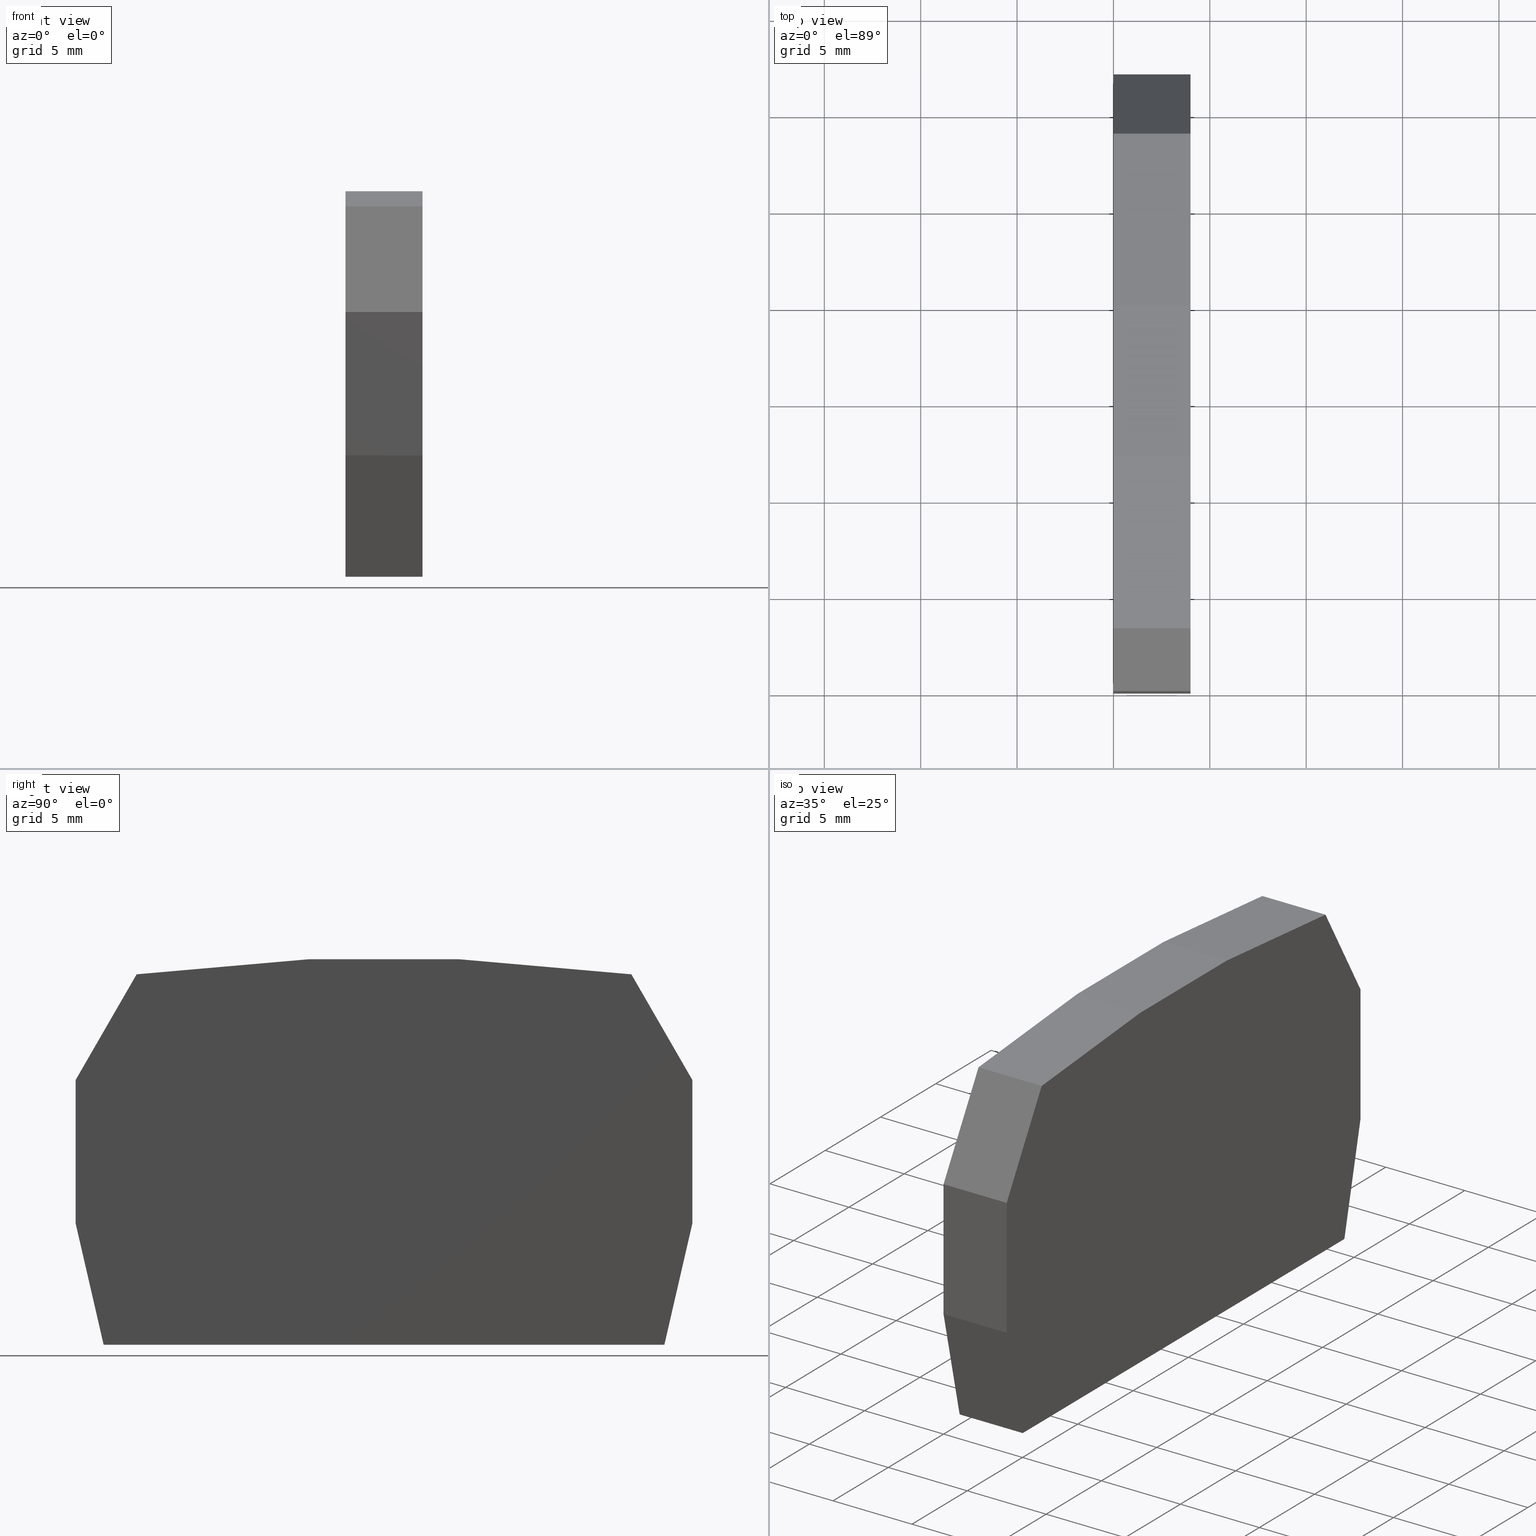
[diagram: canonical four-view strip — front | top / right | iso, engineering-drawing reading convention]
A machine part, canonical four-view strip (front | top / right | iso — engineering-drawing reading convention). The complete STEP part file that produces these views, byte-faithful:
ISO-10303-21;
HEADER;
FILE_DESCRIPTION(('Creo Elements/Direct Modeling STEP Export'),'2;1');
FILE_NAME(
'D:/temp/JobSpoolerServerData/JobServer Files/43c01a88-1d3e-4714-80b9-9d
5217ffe0ed/work/output/model.stp','2017-12-29T11:41:55',(''),(''),
'Creo Elements/Direct Modeling STEP processor for AP214 (Solid Model)',
'Creo Elements/Direct Modeling 18.1I  14-Aug-2016 (C) Parametric Technol
ogy GmbH','');
FILE_SCHEMA(('AUTOMOTIVE_DESIGN { 1 0 10303 214 1 1 1 1 }'));
ENDSEC;
DATA;
#10=CARTESIAN_POINT('',(20.2091964718262,86.2957323155951,
4.00000000000001));
#20=DIRECTION('',(0.,0.,1.));
#30=DIRECTION('',(1.,0.,0.));
#40=AXIS2_PLACEMENT_3D('',#10,#20,#30);
#50=PLANE('',#40);
#60=CARTESIAN_POINT('',(41.4852422445195,86.2957323155951,
4.00000000000001));
#70=DIRECTION('',(0.224951054345037,0.974370064784965,0.));
#80=VECTOR('',#70,1.);
#90=LINE('',#60,#80);
#100=CARTESIAN_POINT('',(37.0173254335857,66.9430584408326,
4.00000000000001));
#110=VERTEX_POINT('',#100);
#120=CARTESIAN_POINT('',(38.471795037686,73.2430584408381,
4.00000000000001));
#130=VERTEX_POINT('',#120);
#140=EDGE_CURVE('',#110,#130,#90,.T.);
#150=ORIENTED_EDGE('',*,*,#140,.F.);
#160=CARTESIAN_POINT('',(38.4717950376948,86.2957323155951,
4.00000000000001));
#170=DIRECTION('',(6.80122624885371E-13,1.,0.));
#180=VECTOR('',#170,1.);
#190=LINE('',#160,#180);
#200=CARTESIAN_POINT('',(38.471795037691,80.6770330370464,
4.00000000000001));
#210=VERTEX_POINT('',#200);
#220=EDGE_CURVE('',#130,#210,#190,.T.);
#230=ORIENTED_EDGE('',*,*,#220,.F.);
#240=CARTESIAN_POINT('',(35.2278374967297,86.2957323155951,
4.00000000000001));
#250=DIRECTION('',(-0.4999999999995,0.866025403784727,0.));
#260=VECTOR('',#250,1.);
#270=LINE('',#240,#260);
#280=CARTESIAN_POINT('',(35.305351863756,86.1614734935887,
4.00000000000001));
#290=VERTEX_POINT('',#280);
#300=EDGE_CURVE('',#210,#290,#270,.T.);
#310=ORIENTED_EDGE('',*,*,#300,.F.);
#320=CARTESIAN_POINT('',(20.2091964718262,87.4822159532185,
4.00000000000001));
#330=DIRECTION('',(0.996194698091687,-0.0871557427483274,0.));
#340=VECTOR('',#330,1.);
#350=LINE('',#320,#340);
#360=CARTESIAN_POINT('',(26.3717950376929,86.9430584408399,
4.00000000000001));
#370=VERTEX_POINT('',#360);
#380=EDGE_CURVE('',#370,#290,#350,.T.);
#390=ORIENTED_EDGE('',*,*,#380,.T.);
#400=CARTESIAN_POINT('',(30.9622604321233,86.9430584408368,
4.00000000000001));
#410=DIRECTION('',(-1.,6.73405775586389E-13,0.));
#420=VECTOR('',#410,1.);
#430=LINE('',#400,#420);
#440=CARTESIAN_POINT('',(18.5717950376847,86.9430584408452,
4.00000000000001));
#450=VERTEX_POINT('',#440);
#460=EDGE_CURVE('',#370,#450,#430,.T.);
#470=ORIENTED_EDGE('',*,*,#460,.F.);
#480=CARTESIAN_POINT('',(20.2091964718262,87.0863125039725,
4.00000000000001));
#490=DIRECTION('',(-0.996194698091806,-0.0871557427469682,0.));
#500=VECTOR('',#490,1.);
#510=LINE('',#480,#500);
#520=CARTESIAN_POINT('',(9.63823821163448,86.1614734936074,
4.00000000000001));
#530=VERTEX_POINT('',#520);
#540=EDGE_CURVE('',#450,#530,#510,.T.);
#550=ORIENTED_EDGE('',*,*,#540,.F.);
#560=CARTESIAN_POINT('',(9.71575257865031,86.2957323155951,
4.00000000000001));
#570=DIRECTION('',(0.500000000000682,0.866025403784045,0.));
#580=VECTOR('',#570,1.);
#590=LINE('',#560,#580);
#600=CARTESIAN_POINT('',(6.47179503769135,80.6770330370682,
4.00000000000001));
#610=VERTEX_POINT('',#600);
#620=EDGE_CURVE('',#610,#530,#590,.T.);
#630=ORIENTED_EDGE('',*,*,#620,.T.);
#640=CARTESIAN_POINT('',(6.4717950376952,86.2957323155951,
4.00000000000001));
#650=DIRECTION('',(6.84341472378946E-13,1.,0.));
#660=VECTOR('',#650,1.);
#670=LINE('',#640,#660);
#680=CARTESIAN_POINT('',(6.47179503768626,73.2430584408599,
4.00000000000001));
#690=VERTEX_POINT('',#680);
#700=EDGE_CURVE('',#690,#610,#670,.T.);
#710=ORIENTED_EDGE('',*,*,#700,.T.);
#720=CARTESIAN_POINT('',(3.45834783087646,86.2957323155951,
4.00000000000001));
#730=DIRECTION('',(-0.224951054343708,0.974370064785272,0.));
#740=VECTOR('',#730,1.);
#750=LINE('',#720,#740);
#760=CARTESIAN_POINT('',(7.92626464177793,66.9430584408525,
4.00000000000001));
#770=VERTEX_POINT('',#760);
#780=EDGE_CURVE('',#770,#690,#750,.T.);
#790=ORIENTED_EDGE('',*,*,#780,.T.);
#800=CARTESIAN_POINT('',(20.2091964718262,66.9430584408441,
4.00000000000001));
#810=DIRECTION('',(-1.,6.82232048632159E-13,0.));
#820=VECTOR('',#810,1.);
#830=LINE('',#800,#820);
#840=EDGE_CURVE('',#110,#770,#830,.T.);
#850=ORIENTED_EDGE('',*,*,#840,.T.);
#860=EDGE_LOOP('',(#850,#790,#710,#630,#550,#470,#390,#310,#230,#150));
#870=FACE_OUTER_BOUND('',#860,.T.);
#880=ADVANCED_FACE('',(#870),#50,.F.);
#890=COLOUR_RGB('',0.560784339904785,0.588235318660736,0.600000023841858
);
#900=FILL_AREA_STYLE_COLOUR('',#890);
#910=FILL_AREA_STYLE('',(#900));
#920=SURFACE_STYLE_FILL_AREA(#910);
#930=SURFACE_SIDE_STYLE('',(#920));
#940=SURFACE_STYLE_USAGE(.BOTH.,#930);
#950=PRESENTATION_STYLE_ASSIGNMENT((#940));
#960=CARTESIAN_POINT('',(20.2091964718262,86.2957323155951,
8.00000000000001));
#970=DIRECTION('',(0.,0.,1.));
#980=DIRECTION('',(1.,0.,0.));
#990=AXIS2_PLACEMENT_3D('',#960,#970,#980);
#1000=PLANE('',#990);
#1010=CARTESIAN_POINT('',(20.2091964718262,66.9430584408441,
8.00000000000001));
#1020=DIRECTION('',(-1.,6.82232048632159E-13,0.));
#1030=VECTOR('',#1020,1.);
#1040=LINE('',#1010,#1030);
#1050=CARTESIAN_POINT('',(37.0173254335857,66.9430584408326,
8.00000000000001));
#1060=VERTEX_POINT('',#1050);
#1070=CARTESIAN_POINT('',(7.92626464177793,66.9430584408525,
8.00000000000001));
#1080=VERTEX_POINT('',#1070);
#1090=EDGE_CURVE('',#1060,#1080,#1040,.T.);
#1100=ORIENTED_EDGE('',*,*,#1090,.F.);
#1110=CARTESIAN_POINT('',(3.45834783087646,86.2957323155951,
8.00000000000001));
#1120=DIRECTION('',(-0.224951054343708,0.974370064785272,0.));
#1130=VECTOR('',#1120,1.);
#1140=LINE('',#1110,#1130);
#1150=CARTESIAN_POINT('',(6.47179503768626,73.2430584408599,
8.00000000000001));
#1160=VERTEX_POINT('',#1150);
#1170=EDGE_CURVE('',#1080,#1160,#1140,.T.);
#1180=ORIENTED_EDGE('',*,*,#1170,.F.);
#1190=CARTESIAN_POINT('',(6.4717950376952,86.2957323155951,
8.00000000000001));
#1200=DIRECTION('',(6.84341472378946E-13,1.,0.));
#1210=VECTOR('',#1200,1.);
#1220=LINE('',#1190,#1210);
#1230=CARTESIAN_POINT('',(6.47179503769135,80.6770330370682,
8.00000000000001));
#1240=VERTEX_POINT('',#1230);
#1250=EDGE_CURVE('',#1160,#1240,#1220,.T.);
#1260=ORIENTED_EDGE('',*,*,#1250,.F.);
#1270=CARTESIAN_POINT('',(9.71575257865031,86.2957323155951,
8.00000000000001));
#1280=DIRECTION('',(0.500000000000682,0.866025403784045,0.));
#1290=VECTOR('',#1280,1.);
#1300=LINE('',#1270,#1290);
#1310=CARTESIAN_POINT('',(9.63823821163448,86.1614734936074,
8.00000000000001));
#1320=VERTEX_POINT('',#1310);
#1330=EDGE_CURVE('',#1240,#1320,#1300,.T.);
#1340=ORIENTED_EDGE('',*,*,#1330,.F.);
#1350=CARTESIAN_POINT('',(20.2091964718262,87.0863125039725,
8.00000000000001));
#1360=DIRECTION('',(-0.996194698091806,-0.0871557427469682,0.));
#1370=VECTOR('',#1360,1.);
#1380=LINE('',#1350,#1370);
#1390=CARTESIAN_POINT('',(18.5717950376979,86.9430584408463,
8.00000000000001));
#1400=VERTEX_POINT('',#1390);
#1410=EDGE_CURVE('',#1400,#1320,#1380,.T.);
#1420=ORIENTED_EDGE('',*,*,#1410,.T.);
#1430=CARTESIAN_POINT('',(30.9622604321233,86.9430584408368,
8.00000000000001));
#1440=DIRECTION('',(-1.,6.73405775586389E-13,0.));
#1450=VECTOR('',#1440,1.);
#1460=LINE('',#1430,#1450);
#1470=CARTESIAN_POINT('',(26.3717950376929,86.9430584408399,
8.00000000000001));
#1480=VERTEX_POINT('',#1470);
#1490=EDGE_CURVE('',#1480,#1400,#1460,.T.);
#1500=ORIENTED_EDGE('',*,*,#1490,.T.);
#1510=CARTESIAN_POINT('',(20.2091964718262,87.4822159532185,
8.00000000000001));
#1520=DIRECTION('',(0.996194698091687,-0.0871557427483274,0.));
#1530=VECTOR('',#1520,1.);
#1540=LINE('',#1510,#1530);
#1550=CARTESIAN_POINT('',(35.305351863756,86.1614734935887,
8.00000000000001));
#1560=VERTEX_POINT('',#1550);
#1570=EDGE_CURVE('',#1480,#1560,#1540,.T.);
#1580=ORIENTED_EDGE('',*,*,#1570,.F.);
#1590=CARTESIAN_POINT('',(35.2278374967297,86.2957323155951,
8.00000000000001));
#1600=DIRECTION('',(-0.4999999999995,0.866025403784727,0.));
#1610=VECTOR('',#1600,1.);
#1620=LINE('',#1590,#1610);
#1630=CARTESIAN_POINT('',(38.471795037691,80.6770330370464,
8.00000000000001));
#1640=VERTEX_POINT('',#1630);
#1650=EDGE_CURVE('',#1640,#1560,#1620,.T.);
#1660=ORIENTED_EDGE('',*,*,#1650,.T.);
#1670=CARTESIAN_POINT('',(38.4717950376948,86.2957323155951,
8.00000000000001));
#1680=DIRECTION('',(6.80122624885371E-13,1.,0.));
#1690=VECTOR('',#1680,1.);
#1700=LINE('',#1670,#1690);
#1710=CARTESIAN_POINT('',(38.4717950376859,73.2430584408381,
8.00000000000001));
#1720=VERTEX_POINT('',#1710);
#1730=EDGE_CURVE('',#1720,#1640,#1700,.T.);
#1740=ORIENTED_EDGE('',*,*,#1730,.T.);
#1750=CARTESIAN_POINT('',(41.4852422445195,86.2957323155951,
8.00000000000001));
#1760=DIRECTION('',(0.224951054345037,0.974370064784965,0.));
#1770=VECTOR('',#1760,1.);
#1780=LINE('',#1750,#1770);
#1790=EDGE_CURVE('',#1060,#1720,#1780,.T.);
#1800=ORIENTED_EDGE('',*,*,#1790,.T.);
#1810=EDGE_LOOP('',(#1800,#1740,#1660,#1580,#1500,#1420,#1340,#1260,
#1180,#1100));
#1820=FACE_OUTER_BOUND('',#1810,.T.);
#1830=ADVANCED_FACE('',(#1820),#1000,.T.);
#1840=COLOUR_RGB('',0.560784339904785,0.588235318660736,
0.600000023841858);
#1850=FILL_AREA_STYLE_COLOUR('',#1840);
#1860=FILL_AREA_STYLE('',(#1850));
#1870=SURFACE_STYLE_FILL_AREA(#1860);
#1880=SURFACE_SIDE_STYLE('',(#1870));
#1890=SURFACE_STYLE_USAGE(.BOTH.,#1880);
#1900=PRESENTATION_STYLE_ASSIGNMENT((#1890));
#1910=CARTESIAN_POINT('',(7.74733049366075,67.7181073865082,
4.00000000000001));
#1920=DIRECTION('',(-0.974370064785272,-0.224951054343708,-0.));
#1930=DIRECTION('',(-0.224951054343708,0.974370064785272,0.));
#1940=AXIS2_PLACEMENT_3D('',#1910,#1920,#1930);
#1950=PLANE('',#1940);
#1960=ORIENTED_EDGE('',*,*,#780,.F.);
#1970=CARTESIAN_POINT('',(6.47179503768626,73.2430584408599,
4.00000000000001));
#1980=DIRECTION('',(0.,0.,1.));
#1990=VECTOR('',#1980,1.);
#2000=LINE('',#1970,#1990);
#2010=EDGE_CURVE('',#690,#1160,#2000,.T.);
#2020=ORIENTED_EDGE('',*,*,#2010,.F.);
#2030=ORIENTED_EDGE('',*,*,#1170,.T.);
#2040=CARTESIAN_POINT('',(7.92626464177794,66.9430584408525,
4.00000000000001));
#2050=DIRECTION('',(0.,0.,-1.));
#2060=VECTOR('',#2050,1.);
#2070=LINE('',#2040,#2060);
#2080=EDGE_CURVE('',#1080,#770,#2070,.T.);
#2090=ORIENTED_EDGE('',*,*,#2080,.F.);
#2100=EDGE_LOOP('',(#2090,#2030,#2020,#1960));
#2110=FACE_OUTER_BOUND('',#2100,.T.);
#2120=ADVANCED_FACE('',(#2110),#1950,.T.);
#2130=COLOUR_RGB('',0.560784339904785,0.588235318660736,
0.600000023841858);
#2140=FILL_AREA_STYLE_COLOUR('',#2130);
#2150=FILL_AREA_STYLE('',(#2140));
#2160=SURFACE_STYLE_FILL_AREA(#2150);
#2170=SURFACE_SIDE_STYLE('',(#2160));
#2180=SURFACE_STYLE_USAGE(.BOTH.,#2170);
#2190=PRESENTATION_STYLE_ASSIGNMENT((#2180));
#2200=CARTESIAN_POINT('',(36.2218895169183,66.9430584408332,
4.00000000000001));
#2210=DIRECTION('',(-6.82232048632159E-13,-1.,-0.));
#2220=DIRECTION('',(-1.,6.82232048632159E-13,0.));
#2230=AXIS2_PLACEMENT_3D('',#2200,#2210,#2220);
#2240=PLANE('',#2230);
#2250=ORIENTED_EDGE('',*,*,#840,.F.);
#2260=ORIENTED_EDGE('',*,*,#2080,.T.);
#2270=ORIENTED_EDGE('',*,*,#1090,.T.);
#2280=CARTESIAN_POINT('',(37.0173254335857,66.9430584408326,
4.00000000000001));
#2290=DIRECTION('',(0.,0.,-1.));
#2300=VECTOR('',#2290,1.);
#2310=LINE('',#2280,#2300);
#2320=EDGE_CURVE('',#1060,#110,#2310,.T.);
#2330=ORIENTED_EDGE('',*,*,#2320,.F.);
#2340=EDGE_LOOP('',(#2330,#2270,#2260,#2250));
#2350=FACE_OUTER_BOUND('',#2340,.T.);
#2360=ADVANCED_FACE('',(#2350),#2240,.T.);
#2370=COLOUR_RGB('',0.560784339904785,0.588235318660736,
0.600000023841858);
#2380=FILL_AREA_STYLE_COLOUR('',#2370);
#2390=FILL_AREA_STYLE('',(#2380));
#2400=SURFACE_STYLE_FILL_AREA(#2390);
#2410=SURFACE_SIDE_STYLE('',(#2400));
#2420=SURFACE_STYLE_USAGE(.BOTH.,#2410);
#2430=PRESENTATION_STYLE_ASSIGNMENT((#2420));
#2440=CARTESIAN_POINT('',(10.6754104831562,86.2522143094882,
4.00000000000001));
#2450=DIRECTION('',(-0.0871557427469682,0.996194698091806,0.));
#2460=DIRECTION('',(0.996194698091806,0.0871557427469682,0.));
#2470=AXIS2_PLACEMENT_3D('',#2440,#2450,#2460);
#2480=PLANE('',#2470);
#2490=ORIENTED_EDGE('',*,*,#540,.T.);
#2500=CARTESIAN_POINT('',(18.571795037698,86.9430584408452,
4.00000000000001));
#2510=DIRECTION('',(0.,0.,1.));
#2520=VECTOR('',#2510,1.);
#2530=LINE('',#2500,#2520);
#2540=EDGE_CURVE('',#450,#1400,#2530,.T.);
#2550=ORIENTED_EDGE('',*,*,#2540,.F.);
#2560=ORIENTED_EDGE('',*,*,#1410,.F.);
#2570=CARTESIAN_POINT('',(9.63823821163448,86.1614734936074,
4.00000000000001));
#2580=DIRECTION('',(0.,0.,-1.));
#2590=VECTOR('',#2580,1.);
#2600=LINE('',#2570,#2590);
#2610=EDGE_CURVE('',#1320,#530,#2600,.T.);
#2620=ORIENTED_EDGE('',*,*,#2610,.F.);
#2630=EDGE_LOOP('',(#2620,#2560,#2550,#2490));
#2640=FACE_OUTER_BOUND('',#2630,.T.);
#2650=ADVANCED_FACE('',(#2640),#2480,.T.);
#2660=COLOUR_RGB('',0.560784339904785,0.588235318660736,
0.600000023841858);
#2670=FILL_AREA_STYLE_COLOUR('',#2660);
#2680=FILL_AREA_STYLE('',(#2670));
#2690=SURFACE_STYLE_FILL_AREA(#2680);
#2700=SURFACE_SIDE_STYLE('',(#2690));
#2710=SURFACE_STYLE_USAGE(.BOTH.,#2700);
#2720=PRESENTATION_STYLE_ASSIGNMENT((#2710));
#2730=CARTESIAN_POINT('',(38.471795037686,73.2430584408381,
4.00000000000001));
#2740=DIRECTION('',(0.974370064784965,-0.224951054345037,0.));
#2750=DIRECTION('',(-0.224951054345037,-0.974370064784965,0.));
#2760=AXIS2_PLACEMENT_3D('',#2730,#2740,#2750);
#2770=PLANE('',#2760);
#2780=ORIENTED_EDGE('',*,*,#2320,.T.);
#2790=ORIENTED_EDGE('',*,*,#1790,.F.);
#2800=CARTESIAN_POINT('',(38.471795037686,73.2430584408381,
4.00000000000001));
#2810=DIRECTION('',(0.,0.,1.));
#2820=VECTOR('',#2810,1.);
#2830=LINE('',#2800,#2820);
#2840=EDGE_CURVE('',#130,#1720,#2830,.T.);
#2850=ORIENTED_EDGE('',*,*,#2840,.T.);
#2860=ORIENTED_EDGE('',*,*,#140,.T.);
#2870=EDGE_LOOP('',(#2860,#2850,#2790,#2780));
#2880=FACE_OUTER_BOUND('',#2870,.T.);
#2890=ADVANCED_FACE('',(#2880),#2770,.T.);
#2900=COLOUR_RGB('',0.560784339904785,0.588235318660736,
0.600000023841858);
#2910=FILL_AREA_STYLE_COLOUR('',#2900);
#2920=FILL_AREA_STYLE('',(#2910));
#2930=SURFACE_STYLE_FILL_AREA(#2920);
#2940=SURFACE_SIDE_STYLE('',(#2930));
#2950=SURFACE_STYLE_USAGE(.BOTH.,#2940);
#2960=PRESENTATION_STYLE_ASSIGNMENT((#2950));
#2970=CARTESIAN_POINT('',(38.4717950376906,80.141134652184,
4.00000000000001));
#2980=DIRECTION('',(1.,-6.80122624885371E-13,0.));
#2990=DIRECTION('',(-6.80122624885371E-13,-1.,0.));
#3000=AXIS2_PLACEMENT_3D('',#2970,#2980,#2990);
#3010=PLANE('',#3000);
#3020=ORIENTED_EDGE('',*,*,#220,.T.);
#3030=ORIENTED_EDGE('',*,*,#2840,.F.);
#3040=ORIENTED_EDGE('',*,*,#1730,.F.);
#3050=CARTESIAN_POINT('',(38.471795037691,80.6770330370464,
4.00000000000001));
#3060=DIRECTION('',(0.,0.,-1.));
#3070=VECTOR('',#3060,1.);
#3080=LINE('',#3050,#3070);
#3090=EDGE_CURVE('',#1640,#210,#3080,.T.);
#3100=ORIENTED_EDGE('',*,*,#3090,.F.);
#3110=EDGE_LOOP('',(#3100,#3040,#3030,#3020));
#3120=FACE_OUTER_BOUND('',#3110,.T.);
#3130=ADVANCED_FACE('',(#3120),#3010,.T.);
#3140=COLOUR_RGB('',0.560784339904785,0.588235318660736,
0.600000023841858);
#3150=FILL_AREA_STYLE_COLOUR('',#3140);
#3160=FILL_AREA_STYLE('',(#3150));
#3170=SURFACE_STYLE_FILL_AREA(#3160);
#3180=SURFACE_SIDE_STYLE('',(#3170));
#3190=SURFACE_STYLE_USAGE(.BOTH.,#3180);
#3200=PRESENTATION_STYLE_ASSIGNMENT((#3190));
#3210=CARTESIAN_POINT('',(6.47179503768626,73.2430584408599,
4.00000000000001));
#3220=DIRECTION('',(-1.,6.84341472378946E-13,0.));
#3230=DIRECTION('',(6.84341472378946E-13,1.,0.));
#3240=AXIS2_PLACEMENT_3D('',#3210,#3220,#3230);
#3250=PLANE('',#3240);
#3260=CARTESIAN_POINT('',(6.47179503769135,80.6770330370682,
4.00000000000001));
#3270=DIRECTION('',(0.,0.,-1.));
#3280=VECTOR('',#3270,1.);
#3290=LINE('',#3260,#3280);
#3300=EDGE_CURVE('',#1240,#610,#3290,.T.);
#3310=ORIENTED_EDGE('',*,*,#3300,.T.);
#3320=ORIENTED_EDGE('',*,*,#1250,.T.);
#3330=ORIENTED_EDGE('',*,*,#2010,.T.);
#3340=ORIENTED_EDGE('',*,*,#700,.F.);
#3350=EDGE_LOOP('',(#3340,#3330,#3320,#3310));
#3360=FACE_OUTER_BOUND('',#3350,.T.);
#3370=ADVANCED_FACE('',(#3360),#3250,.T.);
#3380=COLOUR_RGB('',0.560784339904785,0.588235318660736,
0.600000023841858);
#3390=FILL_AREA_STYLE_COLOUR('',#3380);
#3400=FILL_AREA_STYLE('',(#3390));
#3410=SURFACE_STYLE_FILL_AREA(#3400);
#3420=SURFACE_SIDE_STYLE('',(#3410));
#3430=SURFACE_STYLE_USAGE(.BOTH.,#3420);
#3440=PRESENTATION_STYLE_ASSIGNMENT((#3430));
#3450=CARTESIAN_POINT('',(35.8259189143065,85.2598249132878,
4.00000000000001));
#3460=DIRECTION('',(0.866025403784727,0.4999999999995,0.));
#3470=DIRECTION('',(0.4999999999995,-0.866025403784727,0.));
#3480=AXIS2_PLACEMENT_3D('',#3450,#3460,#3470);
#3490=PLANE('',#3480);
#3500=ORIENTED_EDGE('',*,*,#3090,.T.);
#3510=ORIENTED_EDGE('',*,*,#1650,.F.);
#3520=CARTESIAN_POINT('',(35.305351863756,86.1614734935887,
4.00000000000001));
#3530=DIRECTION('',(0.,0.,-1.));
#3540=VECTOR('',#3530,1.);
#3550=LINE('',#3520,#3540);
#3560=EDGE_CURVE('',#1560,#290,#3550,.T.);
#3570=ORIENTED_EDGE('',*,*,#3560,.F.);
#3580=ORIENTED_EDGE('',*,*,#300,.T.);
#3590=EDGE_LOOP('',(#3580,#3570,#3510,#3500));
#3600=FACE_OUTER_BOUND('',#3590,.T.);
#3610=ADVANCED_FACE('',(#3600),#3490,.T.);
#3620=COLOUR_RGB('',0.560784339904785,0.588235318660736,
0.600000023841858);
#3630=FILL_AREA_STYLE_COLOUR('',#3620);
#3640=FILL_AREA_STYLE('',(#3630));
#3650=SURFACE_STYLE_FILL_AREA(#3640);
#3660=SURFACE_SIDE_STYLE('',(#3650));
#3670=SURFACE_STYLE_USAGE(.BOTH.,#3660);
#3680=PRESENTATION_STYLE_ASSIGNMENT((#3670));
#3690=CARTESIAN_POINT('',(6.73974423012289,81.1411346522058,
4.00000000000001));
#3700=DIRECTION('',(-0.866025403784045,0.500000000000682,0.));
#3710=DIRECTION('',(0.500000000000682,0.866025403784045,0.));
#3720=AXIS2_PLACEMENT_3D('',#3690,#3700,#3710);
#3730=PLANE('',#3720);
#3740=ORIENTED_EDGE('',*,*,#2610,.T.);
#3750=ORIENTED_EDGE('',*,*,#1330,.T.);
#3760=ORIENTED_EDGE('',*,*,#3300,.F.);
#3770=ORIENTED_EDGE('',*,*,#620,.F.);
#3780=EDGE_LOOP('',(#3770,#3760,#3750,#3740));
#3790=FACE_OUTER_BOUND('',#3780,.T.);
#3800=ADVANCED_FACE('',(#3790),#3730,.T.);
#3810=COLOUR_RGB('',0.560784339904785,0.588235318660736,
0.600000023841858);
#3820=FILL_AREA_STYLE_COLOUR('',#3810);
#3830=FILL_AREA_STYLE('',(#3820));
#3840=SURFACE_STYLE_FILL_AREA(#3830);
#3850=SURFACE_SIDE_STYLE('',(#3840));
#3860=SURFACE_STYLE_USAGE(.BOTH.,#3850);
#3870=PRESENTATION_STYLE_ASSIGNMENT((#3860));
#3880=CARTESIAN_POINT('',(26.3717950376929,86.9430584408399,
4.00000000000001));
#3890=DIRECTION('',(0.0871557427483274,0.996194698091687,0.));
#3900=DIRECTION('',(0.996194698091687,-0.0871557427483274,0.));
#3910=AXIS2_PLACEMENT_3D('',#3880,#3890,#3900);
#3920=PLANE('',#3910);
#3930=ORIENTED_EDGE('',*,*,#3560,.T.);
#3940=ORIENTED_EDGE('',*,*,#1570,.T.);
#3950=CARTESIAN_POINT('',(26.3717950376929,86.9430584408399,
4.00000000000001));
#3960=DIRECTION('',(0.,0.,1.));
#3970=VECTOR('',#3960,1.);
#3980=LINE('',#3950,#3970);
#3990=EDGE_CURVE('',#370,#1480,#3980,.T.);
#4000=ORIENTED_EDGE('',*,*,#3990,.T.);
#4010=ORIENTED_EDGE('',*,*,#380,.F.);
#4020=EDGE_LOOP('',(#4010,#4000,#3940,#3930));
#4030=FACE_OUTER_BOUND('',#4020,.T.);
#4040=ADVANCED_FACE('',(#4030),#3920,.T.);
#4050=COLOUR_RGB('',0.560784339904785,0.588235318660736,
0.600000023841858);
#4060=FILL_AREA_STYLE_COLOUR('',#4050);
#4070=FILL_AREA_STYLE('',(#4060));
#4080=SURFACE_STYLE_FILL_AREA(#4070);
#4090=SURFACE_SIDE_STYLE('',(#4080));
#4100=SURFACE_STYLE_USAGE(.BOTH.,#4090);
#4110=PRESENTATION_STYLE_ASSIGNMENT((#4100));
#4120=CARTESIAN_POINT('',(18.571795037698,86.9430584408452,
4.00000000000001));
#4130=DIRECTION('',(6.73405775586389E-13,1.,0.));
#4140=DIRECTION('',(1.,-6.73405775586389E-13,0.));
#4150=AXIS2_PLACEMENT_3D('',#4120,#4130,#4140);
#4160=PLANE('',#4150);
#4170=ORIENTED_EDGE('',*,*,#3990,.F.);
#4180=ORIENTED_EDGE('',*,*,#1490,.F.);
#4190=ORIENTED_EDGE('',*,*,#2540,.T.);
#4200=ORIENTED_EDGE('',*,*,#460,.T.);
#4210=EDGE_LOOP('',(#4200,#4190,#4180,#4170));
#4220=FACE_OUTER_BOUND('',#4210,.T.);
#4230=ADVANCED_FACE('',(#4220),#4160,.T.);
#4240=COLOUR_RGB('',0.560784339904785,0.588235318660736,
0.600000023841858);
#4250=FILL_AREA_STYLE_COLOUR('',#4240);
#4260=FILL_AREA_STYLE('',(#4250));
#4270=SURFACE_STYLE_FILL_AREA(#4260);
#4280=SURFACE_SIDE_STYLE('',(#4270));
#4290=SURFACE_STYLE_USAGE(.BOTH.,#4280);
#4300=PRESENTATION_STYLE_ASSIGNMENT((#4290));
#4310=CLOSED_SHELL('',(#2120,#2360,#2650,#2890,#3130,#3370,#3610,#3800,
#4040,#4230,#1830,#880));
#4320=MANIFOLD_SOLID_BREP('',#4310);
#4330=CARTESIAN_POINT('',(0.,0.,0.));
#4340=DIRECTION('',(0.,0.,1.));
#4350=DIRECTION('',(1.,0.,0.));
#4360=AXIS2_PLACEMENT_3D('',#4330,#4340,#4350);
#4370=APPLICATION_CONTEXT(' ');
#4380=APPLICATION_PROTOCOL_DEFINITION(' ','automotive_design',1998,#4370
);
#4390=PRODUCT_CONTEXT('',#4370,'mechanical');
#4400=PRODUCT_DEFINITION_CONTEXT('part definition',#4370,'design');
#4410=PRODUCT('D-MSBV_2.5-select','D-MSBV_2.5-select','',(#4390));
#4420=PRODUCT_RELATED_PRODUCT_CATEGORY('part',' ',(#4410));
#4430=PRODUCT_DEFINITION_FORMATION_WITH_SPECIFIED_SOURCE('','',#4410,
.BOUGHT.);
#4440=PRODUCT_DEFINITION('',' ',#4430,#4400);
#4450=PRODUCT_DEFINITION_SHAPE('','',#4440);
#4460=DIMENSIONAL_EXPONENTS(1.,0.,0.,0.,0.,0.,0.);
#4470=DIMENSIONAL_EXPONENTS(0.,0.,0.,0.,0.,0.,0.);
#4480=DIMENSIONAL_EXPONENTS(0.,0.,0.,0.,0.,0.,0.);
#4490=(LENGTH_UNIT() NAMED_UNIT(*) SI_UNIT(.MILLI.,.METRE.));
#4500=(NAMED_UNIT(*) PLANE_ANGLE_UNIT() SI_UNIT($,.RADIAN.));
#4510=(NAMED_UNIT(*) SI_UNIT($,.STERADIAN.) SOLID_ANGLE_UNIT());
#4520=(GEOMETRIC_REPRESENTATION_CONTEXT(3) 
GLOBAL_UNCERTAINTY_ASSIGNED_CONTEXT((#4530)) 
GLOBAL_UNIT_ASSIGNED_CONTEXT((#4490,#4500,#4510)) REPRESENTATION_CONTEXT
('',''));
#4530=UNCERTAINTY_MEASURE_WITH_UNIT(LENGTH_MEASURE(1.E-6),#4490,
'distance_accuracy_value','maximum gap value');
#4540=ADVANCED_BREP_SHAPE_REPRESENTATION('',(#4360,#4320),#4520);
#4550=SHAPE_DEFINITION_REPRESENTATION(#4450,#4540);
#4560=COLOUR_RGB('',0.560784339904785,0.588235318660736,
0.600000023841858);
#4570=FILL_AREA_STYLE_COLOUR('',#4560);
#4580=FILL_AREA_STYLE('',(#4570));
#4590=SURFACE_STYLE_FILL_AREA(#4580);
#4600=SURFACE_SIDE_STYLE('',(#4590));
#4610=SURFACE_STYLE_USAGE(.BOTH.,#4600);
#4620=PRESENTATION_STYLE_ASSIGNMENT((#4610));
#4630=STYLED_ITEM('',(#4620),#4320);
#4640=OVER_RIDING_STYLED_ITEM('',(#950),#880,#4630);
#4650=OVER_RIDING_STYLED_ITEM('',(#1900),#1830,#4630);
#4660=OVER_RIDING_STYLED_ITEM('',(#2190),#2120,#4630);
#4670=OVER_RIDING_STYLED_ITEM('',(#2430),#2360,#4630);
#4680=OVER_RIDING_STYLED_ITEM('',(#2720),#2650,#4630);
#4690=OVER_RIDING_STYLED_ITEM('',(#2960),#2890,#4630);
#4700=OVER_RIDING_STYLED_ITEM('',(#3200),#3130,#4630);
#4710=OVER_RIDING_STYLED_ITEM('',(#3440),#3370,#4630);
#4720=OVER_RIDING_STYLED_ITEM('',(#3680),#3610,#4630);
#4730=OVER_RIDING_STYLED_ITEM('',(#3870),#3800,#4630);
#4740=OVER_RIDING_STYLED_ITEM('',(#4110),#4040,#4630);
#4750=OVER_RIDING_STYLED_ITEM('',(#4300),#4230,#4630);
#4760=DRAUGHTING_MODEL('',(#4630,#4640,#4650,#4660,#4670,#4680,#4690,
#4700,#4710,#4720,#4730,#4740,#4750),#4520);
#4770=CARTESIAN_POINT('',(8.00000000000001,38.4717950376886,
-66.9430584408503));
#4780=DIRECTION('',(-1.,0.,0.));
#4790=DIRECTION('',(0.,-1.,0.));
#4800=AXIS2_PLACEMENT_3D('',#4770,#4780,#4790);
#4810=ITEM_DEFINED_TRANSFORMATION('D-MSBV_2.5-select','',#4360,#4800);
#4820=APPLICATION_CONTEXT(' ');
#4830=APPLICATION_PROTOCOL_DEFINITION(' ','automotive_design',1998,#4820
);
#4840=PRODUCT_CONTEXT('',#4820,'mechanical');
#4850=PRODUCT_DEFINITION_CONTEXT('part definition',#4820,'design');
#4860=PRODUCT('D-MSBV_2.5-select','D-MSBV_2.5-select','',(#4840));
#4870=PRODUCT_RELATED_PRODUCT_CATEGORY('part',' ',(#4860));
#4880=PRODUCT_DEFINITION_FORMATION_WITH_SPECIFIED_SOURCE('','',#4860,
.BOUGHT.);
#4890=PRODUCT_DEFINITION('',' ',#4880,#4850);
#4900=PRODUCT_DEFINITION_SHAPE('','',#4890);
#4910=DIMENSIONAL_EXPONENTS(1.,0.,0.,0.,0.,0.,0.);
#4920=DIMENSIONAL_EXPONENTS(0.,0.,0.,0.,0.,0.,0.);
#4930=DIMENSIONAL_EXPONENTS(0.,0.,0.,0.,0.,0.,0.);
#4940=(LENGTH_UNIT() NAMED_UNIT(*) SI_UNIT(.MILLI.,.METRE.));
#4950=(NAMED_UNIT(*) PLANE_ANGLE_UNIT() SI_UNIT($,.RADIAN.));
#4960=(NAMED_UNIT(*) SI_UNIT($,.STERADIAN.) SOLID_ANGLE_UNIT());
#4970=(GEOMETRIC_REPRESENTATION_CONTEXT(3) 
GLOBAL_UNCERTAINTY_ASSIGNED_CONTEXT((#4980)) 
GLOBAL_UNIT_ASSIGNED_CONTEXT((#4940,#4950,#4960)) REPRESENTATION_CONTEXT
('',''));
#4980=UNCERTAINTY_MEASURE_WITH_UNIT(LENGTH_MEASURE(1.E-6),#4940,
'distance_accuracy_value','maximum gap value');
#4990=SHAPE_REPRESENTATION('',(#4360,#4800),#4970);
#5000=SHAPE_DEFINITION_REPRESENTATION(#4900,#4990);
#5010=(REPRESENTATION_RELATIONSHIP('','',#4540,#4990) 
REPRESENTATION_RELATIONSHIP_WITH_TRANSFORMATION(#4810) 
SHAPE_REPRESENTATION_RELATIONSHIP());
#5020=NEXT_ASSEMBLY_USAGE_OCCURRENCE('1','','D-MSBV_2.5-select',#4890,
#4440,'');
#5030=PRODUCT_DEFINITION_SHAPE('','',#5020);
#5040=CONTEXT_DEPENDENT_SHAPE_REPRESENTATION(#5010,#5030);
ENDSEC;
END-ISO-10303-21;
